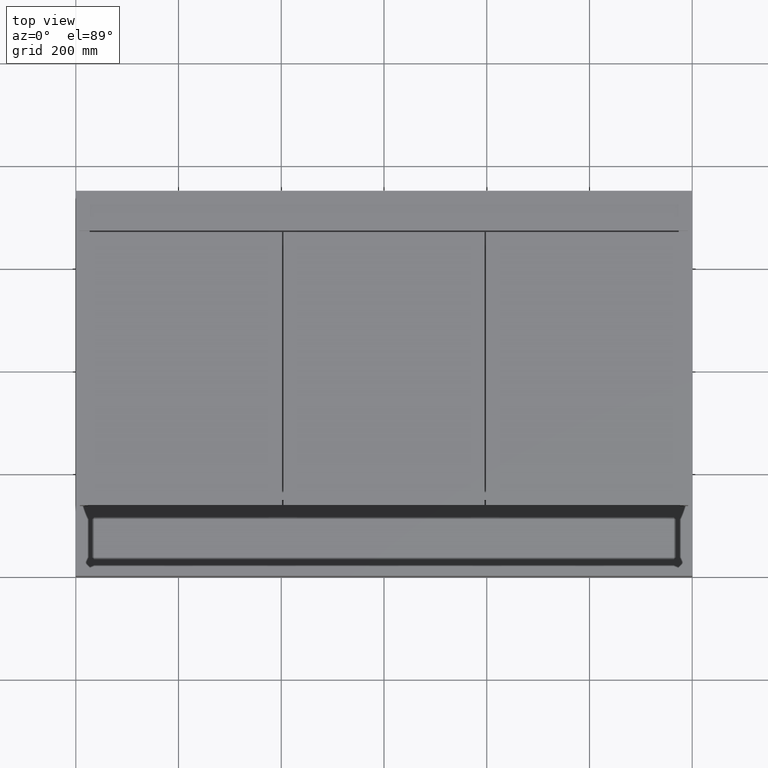
[diagram: clean part render]
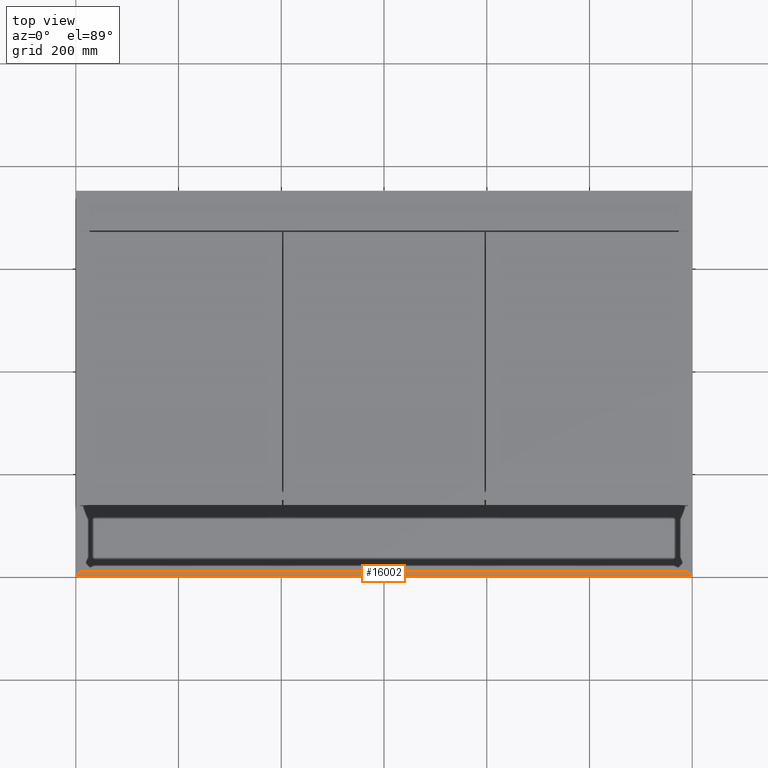
[diagram: same view with one face highlighted and labeled with its STEP entity id]
A machine part, top view. The second image highlights one B-rep face of the part: STEP entity #16002.
In plain terms, the highlighted planar face has unit normal (0, 0, -1).
Its self-contained STEP definition (entity closure, byte-faithful):
#524 = CARTESIAN_POINT ( 'NONE',  ( 0.0000000000000000000, 8.000000000000000000, 0.0000000000000000000 ) ) ;
#572 = CARTESIAN_POINT ( 'NONE',  ( 0.0000000000000000000, 8.000000000000000000, 0.0000000000000000000 ) ) ;
#1586 = EDGE_CURVE ( 'NONE', #14543, #10303, #5920, .T. ) ;
#1926 = ORIENTED_EDGE ( 'NONE', *, *, #2231, .T. ) ;
#2231 = EDGE_CURVE ( 'NONE', #10303, #14682, #4006, .T. ) ;
#3622 = VECTOR ( 'NONE', #5928, 1000.000000000000000 ) ;
#3737 = LINE ( 'NONE', #9145, #10222 ) ;
#4006 = LINE ( 'NONE', #9425, #7569 ) ;
#4800 = ORIENTED_EDGE ( 'NONE', *, *, #1586, .T. ) ;
#5219 = VERTEX_POINT ( 'NONE', #7421 ) ;
#5920 = LINE ( 'NONE', #11362, #17196 ) ;
#5928 = DIRECTION ( 'NONE',  ( 1.000000000000000000, 0.0000000000000000000, 0.0000000000000000000 ) ) ;
#5971 = DIRECTION ( 'NONE',  ( 0.0000000000000000000, 0.0000000000000000000, -1.000000000000000000 ) ) ;
#6399 = AXIS2_PLACEMENT_3D ( 'NONE', #572, #5971, #11406 ) ;
#7297 = FACE_OUTER_BOUND ( 'NONE', #12916, .T. ) ;
#7349 = ORIENTED_EDGE ( 'NONE', *, *, #15755, .F. ) ;
#7421 = CARTESIAN_POINT ( 'NONE',  ( 1191.999999999999773, 8.000000000000000000, 0.0000000000000000000 ) ) ;
#7569 = VECTOR ( 'NONE', #14845, 1000.000000000000000 ) ;
#9145 = CARTESIAN_POINT ( 'NONE',  ( 1191.999999999999773, 8.000000000000000000, 0.0000000000000000000 ) ) ;
#9425 = CARTESIAN_POINT ( 'NONE',  ( 0.0000000000000000000, 0.0000000000000000000, 0.0000000000000000000 ) ) ;
#10222 = VECTOR ( 'NONE', #14568, 1000.000000000000000 ) ;
#10303 = VERTEX_POINT ( 'NONE', #12024 ) ;
#11362 = CARTESIAN_POINT ( 'NONE',  ( 8.000000000000007105, 8.000000000000000000, 0.0000000000000000000 ) ) ;
#11406 = DIRECTION ( 'NONE',  ( -1.000000000000000000, 0.0000000000000000000, -0.0000000000000000000 ) ) ;
#12024 = CARTESIAN_POINT ( 'NONE',  ( 0.0000000000000000000, 0.0000000000000000000, 0.0000000000000000000 ) ) ;
#12697 = LINE ( 'NONE', #524, #3622 ) ;
#12748 = PLANE ( 'NONE',  #6399 ) ;
#12916 = EDGE_LOOP ( 'NONE', ( #1926, #13591, #7349, #4800 ) ) ;
#13591 = ORIENTED_EDGE ( 'NONE', *, *, #14289, .T. ) ;
#14289 = EDGE_CURVE ( 'NONE', #14682, #5219, #3737, .T. ) ;
#14373 = CARTESIAN_POINT ( 'NONE',  ( 1200.000000000000000, 0.0000000000000000000, 0.0000000000000000000 ) ) ;
#14543 = VERTEX_POINT ( 'NONE', #15382 ) ;
#14568 = DIRECTION ( 'NONE',  ( -0.7071067811865524577, 0.7071067811865426878, 0.0000000000000000000 ) ) ;
#14682 = VERTEX_POINT ( 'NONE', #14373 ) ;
#14845 = DIRECTION ( 'NONE',  ( 1.000000000000000000, 0.0000000000000000000, 0.0000000000000000000 ) ) ;
#15382 = CARTESIAN_POINT ( 'NONE',  ( 8.000000000000007105, 8.000000000000000000, 0.0000000000000000000 ) ) ;
#15755 = EDGE_CURVE ( 'NONE', #14543, #5219, #12697, .T. ) ;
#16002 = ADVANCED_FACE ( 'NONE', ( #7297 ), #12748, .F. ) ;
#16776 = DIRECTION ( 'NONE',  ( -0.7071067811865524577, -0.7071067811865426878, 0.0000000000000000000 ) ) ;
#17196 = VECTOR ( 'NONE', #16776, 1000.000000000000000 ) ;